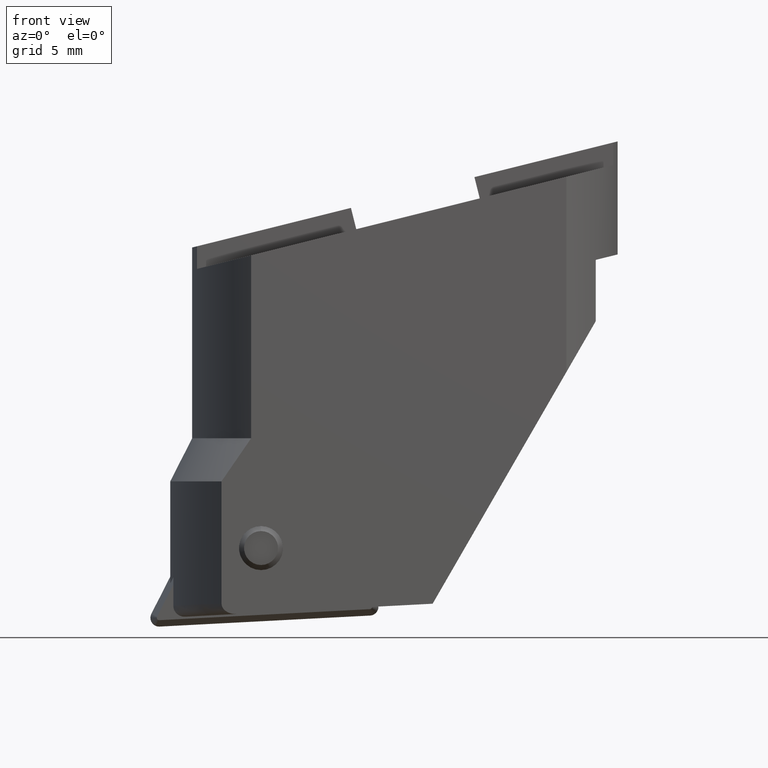
[diagram: clean part render]
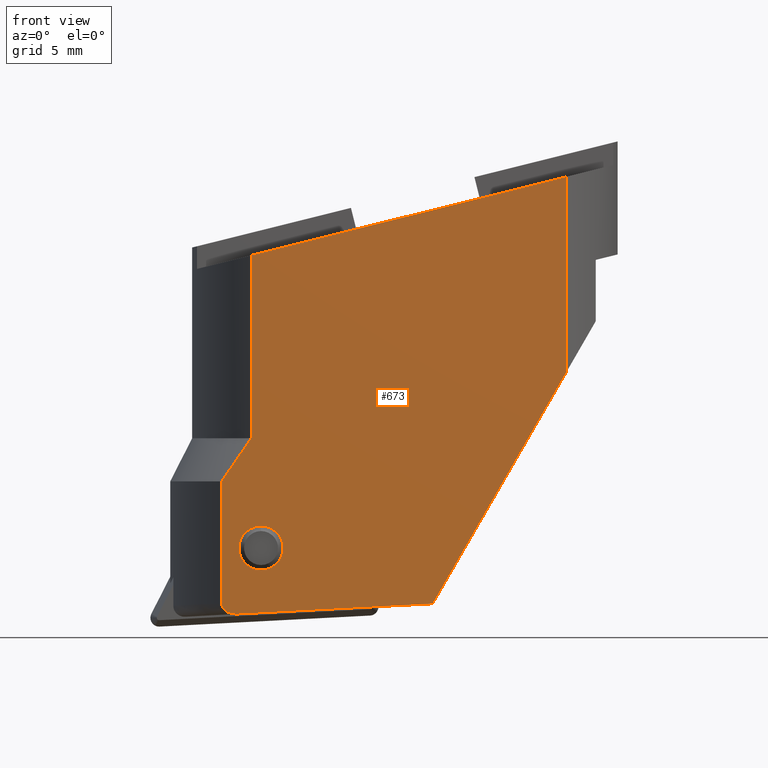
[diagram: same view with one face highlighted and labeled with its STEP entity id]
A machine part, front view. The second image highlights one B-rep face of the part: STEP entity #673.
In plain terms, the highlighted planar face has unit normal (0, 1, 0).
Its self-contained STEP definition (entity closure, byte-faithful):
#585=VERTEX_POINT('NONE',#1689);
#617=EDGE_CURVE('NONE',#1387,#959,#1723,.T.);
#673=ADVANCED_FACE('NONE',(#1783,#1784),#1785,.F.);
#889=VERTEX_POINT('NONE',#2026);
#939=VERTEX_POINT('NONE',#2085);
#959=VERTEX_POINT('NONE',#2108);
#1015=EDGE_CURVE('NONE',#1583,#1369,#2170,.T.);
#1043=VERTEX_POINT('NONE',#2201);
#1071=VERTEX_POINT('NONE',#2230);
#1159=EDGE_CURVE('NONE',#1583,#1387,#2327,.F.);
#1193=EDGE_CURVE('NONE',#1569,#585,#2363,.F.);
#1241=EDGE_CURVE('NONE',#889,#1569,#2420,.F.);
#1353=EDGE_CURVE('NONE',#1071,#1043,#2544,.F.);
#1369=VERTEX_POINT('NONE',#2561);
#1387=VERTEX_POINT('NONE',#2582);
#1487=EDGE_CURVE('NONE',#939,#889,#2688,.F.);
#1501=EDGE_CURVE('NONE',#1043,#1071,#2702,.T.);
#1509=EDGE_CURVE('NONE',#585,#1369,#2710,.F.);
#1569=VERTEX_POINT('NONE',#2775);
#1583=VERTEX_POINT('NONE',#2790);
#1651=EDGE_CURVE('NONE',#939,#959,#2863,.T.);
#1689=CARTESIAN_POINT('',(-7.86066154976793,-6.5,-21.0628344528579));
#1723=LINE('',#2954,#2955);
#1783=FACE_OUTER_BOUND('',#3042,.T.);
#1784=FACE_BOUND('',#3043,.T.);
#1785=PLANE('',#3044);
#2026=CARTESIAN_POINT('',(-6.51076032426321,-6.5,-13.5373894944948));
#2085=CARTESIAN_POINT('',(-6.51076032426321,-6.5,-5.19707412698938));
#2108=CARTESIAN_POINT('',(7.86066154976793,-6.5,-1.61387621312051));
#2170=LINE('',#3547,#3548);
#2201=CARTESIAN_POINT('',(-6.05837375299888,-6.5,-17.5337192744393));
#2230=CARTESIAN_POINT('',(-6.05837375299888,-6.5,-19.5467192744393));
#2327=LINE('',#4153,#4154);
#2363=LINE('',#4203,#4204);
#2420=(B_SPLINE_CURVE(2,(#4275,#4276,#4277),.UNSPECIFIED.,.F.,.F.)B_SPLINE_CURVE_WITH_KNOTS((3,3),(1.31171046744655,3.66743753035655),.UNSPECIFIED.)RATIONAL_B_SPLINE_CURVE((1.00479707499512,1.00774465892163,1.00580734929624))BOUNDED_CURVE()REPRESENTATION_ITEM('')GEOMETRIC_REPRESENTATION_ITEM()CURVE());
#2544=CIRCLE('',#4456,1.0065);
#2561=CARTESIAN_POINT('',(-7.17383202187853,-6.5,-21.547719524158));
#2582=CARTESIAN_POINT('',(7.86066154976793,-6.5,-10.5218530519014));
#2688=LINE('',#4649,#4650);
#2702=CIRCLE('',#4667,1.0065);
#2710=B_SPLINE_CURVE_WITH_KNOTS('',3,(#4678,#4679,#4680,#4681,#4682,#4683,#4684,#4685,#4686,#4687,#4688,#4689,#4690),.UNSPECIFIED.,.F.,.F.,(4,3,3,3,4),(0.0,0.5,0.764780171184301,0.958646270486723,1.0),.UNSPECIFIED.);
#2775=CARTESIAN_POINT('',(-7.86066154976794,-6.5,-15.5));
#2790=CARTESIAN_POINT('',(1.76535327347905,-6.5,-21.0792366742288));
#2863=LINE('',#4898,#4899);
#2954=CARTESIAN_POINT('',(7.86066154976793,-6.5,-25.0));
#2955=VECTOR('',#4949,1.0);
#3042=EDGE_LOOP('',(#5004,#5005,#5006,#5007,#5008,#5009,#5010,#5011));
#3043=EDGE_LOOP('',(#5012,#5013));
#3044=AXIS2_PLACEMENT_3D('',#5014,#5015,#5016);
#3547=CARTESIAN_POINT('',(-11.9302655817919,-6.5,-21.7969936443404));
#3548=VECTOR('',#5576,1.0);
#4153=CARTESIAN_POINT('',(2.42915548265114,-6.5,-19.9294975217663));
#4154=VECTOR('',#5748,1.0);
#4203=CARTESIAN_POINT('',(-7.86066154976793,-6.5,-25.0));
#4204=VECTOR('',#5788,1.0);
#4275=CARTESIAN_POINT('',(-7.86066154976794,-6.5,-15.5));
#4276=CARTESIAN_POINT('',(-7.150919668317,-6.5,-14.4265211839844));
#4277=CARTESIAN_POINT('',(-6.51076032426321,-6.5,-13.5373894944948));
#4456=AXIS2_PLACEMENT_3D('',#6013,#6014,#6015);
#4649=CARTESIAN_POINT('',(-6.51076032426321,-6.5,2.17159527674492E-016));
#4650=VECTOR('',#6183,1.0);
#4667=AXIS2_PLACEMENT_3D('',#6190,#6191,#6192);
#4678=CARTESIAN_POINT('',(-7.17383202187853,-6.5,-21.547719524158));
#4679=CARTESIAN_POINT('',(-7.32965916857431,-6.5,-21.5558859937044));
#4680=CARTESIAN_POINT('',(-7.49025640938897,-6.5,-21.5246218942532));
#4681=CARTESIAN_POINT('',(-7.62362704053759,-6.5,-21.4435501496875));
#4682=CARTESIAN_POINT('',(-7.69425483763057,-6.5,-21.4006177688789));
#4683=CARTESIAN_POINT('',(-7.75677056601775,-6.5,-21.3432637619502));
#4684=CARTESIAN_POINT('',(-7.80025474257936,-6.5,-21.2720884373539));
#4685=CARTESIAN_POINT('',(-7.83209288081181,-6.5,-21.2199754619587));
#4686=CARTESIAN_POINT('',(-7.85259740034659,-6.5,-21.1619246811456));
#4687=CARTESIAN_POINT('',(-7.85858943195576,-6.5,-21.1018023418672));
#4688=CARTESIAN_POINT('',(-7.85986759691236,-6.5,-21.088977598577));
#4689=CARTESIAN_POINT('',(-7.8606605511712,-6.5,-21.0757402066623));
#4690=CARTESIAN_POINT('',(-7.86066154976793,-6.5,-21.0628344528579));
#4898=CARTESIAN_POINT('',(-15.8537222095003,-6.5,-7.52653615447542));
#4899=VECTOR('',#6351,1.0);
#4949=DIRECTION('',(1.22464679914735E-016,-0.0,1.0));
#5004=ORIENTED_EDGE('',*,*,#1193,.T.);
#5005=ORIENTED_EDGE('',*,*,#1509,.T.);
#5006=ORIENTED_EDGE('',*,*,#1015,.F.);
#5007=ORIENTED_EDGE('',*,*,#1159,.T.);
#5008=ORIENTED_EDGE('',*,*,#617,.T.);
#5009=ORIENTED_EDGE('',*,*,#1651,.F.);
#5010=ORIENTED_EDGE('',*,*,#1487,.T.);
#5011=ORIENTED_EDGE('',*,*,#1241,.T.);
#5012=ORIENTED_EDGE('',*,*,#1501,.F.);
#5013=ORIENTED_EDGE('',*,*,#1353,.F.);
#5014=CARTESIAN_POINT('',(-9.47954982912627,-6.5,-31.0));
#5015=DIRECTION('',(0.0,1.0,0.0));
#5016=DIRECTION('',(1.0,0.0,-1.22464679914735E-016));
#5576=DIRECTION('',(-0.998629534754574,0.0,-0.0523359562429361));
#5748=DIRECTION('',(-0.5,0.0,-0.866025403784439));
#5788=DIRECTION('',(1.22464679914735E-016,-0.0,1.0));
#6013=CARTESIAN_POINT('',(-6.05837375299888,-6.5,-18.5402192744393));
#6014=DIRECTION('',(-0.0,1.0,0.0));
#6015=DIRECTION('',(1.22464679914735E-016,0.0,1.0));
#6183=DIRECTION('',(1.22584462560568E-016,1.9764007323247E-020,1.0));
#6190=CARTESIAN_POINT('',(-6.05837375299888,-6.5,-18.5402192744393));
#6191=DIRECTION('',(0.0,-1.0,0.0));
#6192=DIRECTION('',(1.22464679914735E-016,0.0,1.0));
#6351=DIRECTION('',(0.970295726275998,0.0,0.241921895599661));